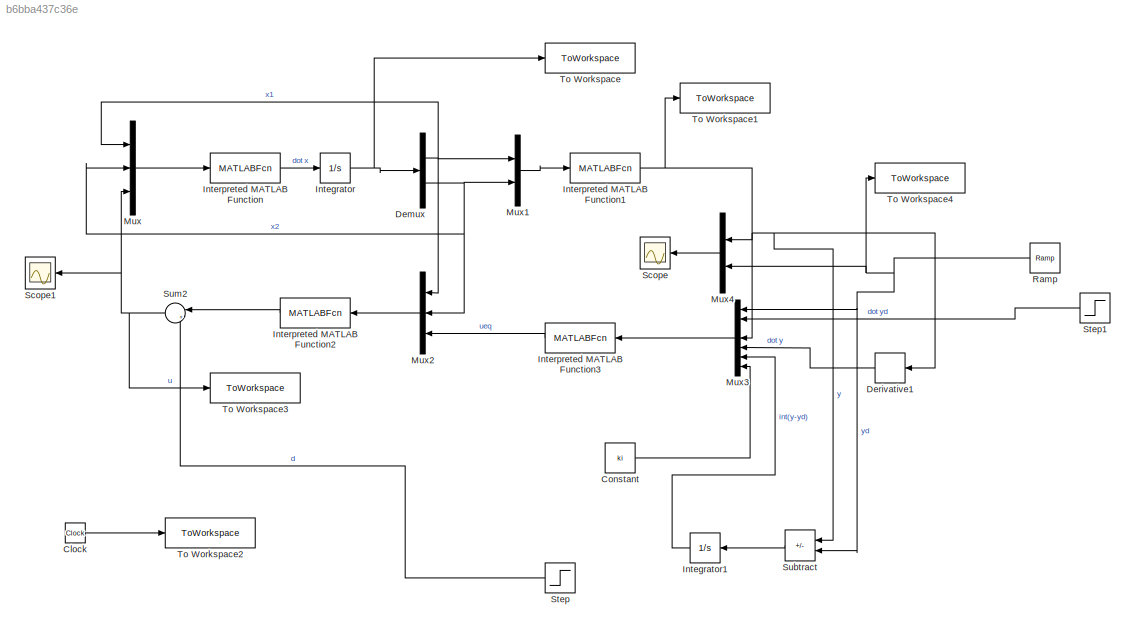
MODEL slx_b6bba437c36e
KIND model
CONFIG AbsTol = auto
CONFIG EnableMultiTasking = off
CONFIG FixedStep = auto
CONFIG MaxStep = auto
CONFIG MinStep = auto
CONFIG RelTol = 1e-7
CONFIG SampleTimeConstraint = Unconstrained
CONFIG SolverName = VariableStepAuto
CONFIG StartTime = 0.0
CONFIG StopTime = 50
BLOCK [Clock] Clock
BLOCK [Constant] Constant
  Value = ki
BLOCK [Demux] Demux
  Outputs = 2
BLOCK [Derivative] Derivative1
BLOCK [Integrator] Integrator
BLOCK [Integrator] Integrator1
  NameLocation = top
BLOCK [MATLABFcn] Interpreted MATLAB Function
  MATLABFcn = FL_sys
  OutputDimensions = 2
BLOCK [MATLABFcn] Interpreted MATLAB Function1
  MATLABFcn = FL_sys_out
  OutputDimensions = 1
BLOCK [MATLABFcn] Interpreted MATLAB Function2
  MATLABFcn = FL_FBL_control
  NameLocation = top
  OutputDimensions = 1
BLOCK [MATLABFcn] Interpreted MATLAB Function3
  MATLABFcn = FL_s_v_control_law_int
  NameLocation = top
  OutputDimensions = 1
BLOCK [Mux] Mux
  DisplayOption = bar
  Inputs = 3
BLOCK [Mux] Mux1
  DisplayOption = bar
  Inputs = 2
BLOCK [Mux] Mux2
  DisplayOption = bar
  Inputs = 3
  NameLocation = top
BLOCK [Mux] Mux3
  DisplayOption = bar
  Inputs = 7
  NameLocation = top
BLOCK [Mux] Mux4
  DisplayOption = bar
  Inputs = 2
  NameLocation = top
BLOCK [Reference] Ramp  REF=simulink/Sources/Ramp
  NameLocation = top
  SourceBlock = simulink/Sources/Ramp
  SourceType = Ramp
BLOCK [Scope] Scope
  Floating = off
  NameLocation = top
  NumInputPorts = 1
  ScopeSpecificationString = Simulink.scopes.TimeScopeBlockCfg('CurrentConfiguration', extmgr.ConfigurationSet(extmgr.Configuration('Core','General UI',true),extmgr.Configuration('Core','Source UI',true),extmgr.Configuration('Sources','WiredSimulink',true,'DataLoggingVariableName','ScopeData1'),extmgr.Configuration('Visuals','Time Domain',true,'SerializedDisplays',{struct('MinYLimReal','-10.02636','MaxYLimReal','58.82059','YL...<+1453ch>
BLOCK [Scope] Scope1
  Floating = off
  NameLocation = top
  NumInputPorts = 1
  ScopeSpecificationString = Simulink.scopes.TimeScopeBlockCfg('CurrentConfiguration', extmgr.ConfigurationSet(extmgr.Configuration('Core','General UI',true),extmgr.Configuration('Core','Source UI',true),extmgr.Configuration('Sources','WiredSimulink',true),extmgr.Configuration('Visuals','Time Domain',true,'SerializedDisplays',{struct('MinYLimReal','-51.08904','MaxYLimReal','354.65914','YLabelReal','','MinYLimMag','0.00000','M...<+1436ch>
BLOCK [Step] Step
  After = Disturbo
  NameLocation = top
  SampleTime = 0
  Time = 5
BLOCK [Step] Step1
  NameLocation = top
  SampleTime = 0
BLOCK [Sum] Subtract
  IconShape = rectangular
  Inputs = +-
  NameLocation = top
BLOCK [Sum] Sum2
  Inputs = |++
  NameLocation = top
BLOCK [ToWorkspace] To Workspace
  FixptAsFi = on
  MaxDataPoints = inf
  SampleTime = -1
  VariableName = x
BLOCK [ToWorkspace] To Workspace1
  FixptAsFi = on
  MaxDataPoints = inf
  SampleTime = -1
  VariableName = y
BLOCK [ToWorkspace] To Workspace2
  FixptAsFi = on
  MaxDataPoints = inf
  SampleTime = -1
  VariableName = t
BLOCK [ToWorkspace] To Workspace3
  FixptAsFi = on
  MaxDataPoints = inf
  SampleTime = -1
  VariableName = u
BLOCK [ToWorkspace] To Workspace4
  FixptAsFi = on
  MaxDataPoints = inf
  SampleTime = -1
  VariableName = r
LINE Clock:1 -> To Workspace2:1
LINE Constant:1 -> Mux3:7
NET Demux:1 -> Mux1:1, Mux2:1, Mux:1
NET Demux:2 -> Mux1:2, Mux2:2, Mux:2
LINE Derivative1:1 -> Mux3:5
LINE Integrator1:1 -> Mux3:6
NET Integrator:1 -> Demux:1, To Workspace:1
NET Interpreted MATLAB Function1:1 -> Derivative1:1, Mux3:4, Mux4:1, Subtract:1, To Workspace1:1
LINE Interpreted MATLAB Function2:1 -> Sum2:1
LINE Interpreted MATLAB Function3:1 -> Mux2:3
LINE Interpreted MATLAB Function:1 -> Integrator:1
LINE Mux1:1 -> Interpreted MATLAB Function1:1
LINE Mux2:1 -> Interpreted MATLAB Function2:1
LINE Mux3:1 -> Interpreted MATLAB Function3:1
LINE Mux4:1 -> Scope:1
LINE Mux:1 -> Interpreted MATLAB Function:1
NET Ramp:1 -> Mux3:1, Mux4:2, Subtract:2, To Workspace4:1
LINE Step1:1 -> Mux3:2
LINE Step:1 -> Sum2:2
LINE Subtract:1 -> Integrator1:1
NET Sum2:1 -> Mux:3, Scope1:1, To Workspace3:1
note: NET lines group one-source signal fan-out (src -> all destinations, sorted); 1:1 wires keep LINE
